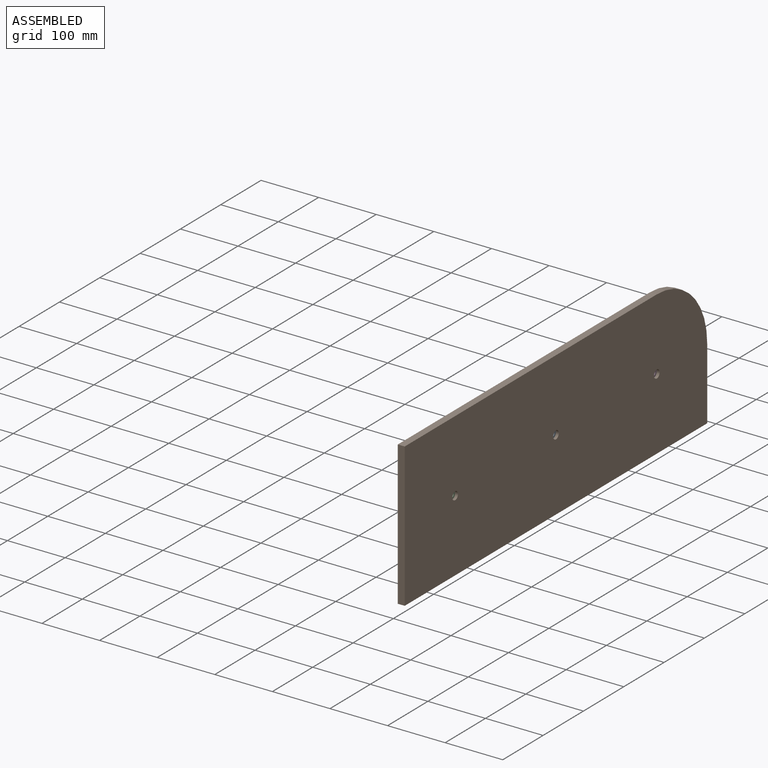
[diagram: assembled view]
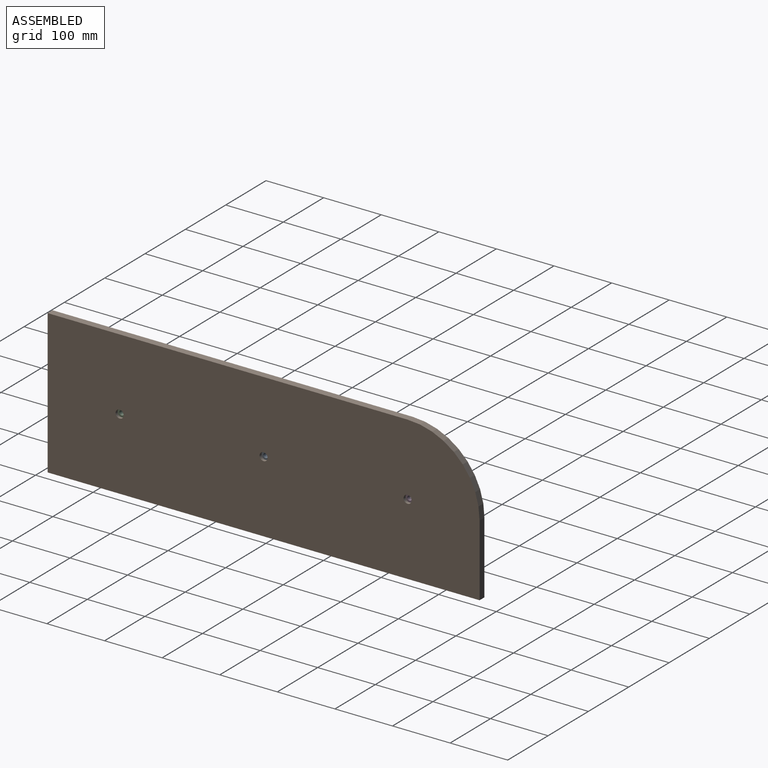
[diagram: assembled view, second angle]
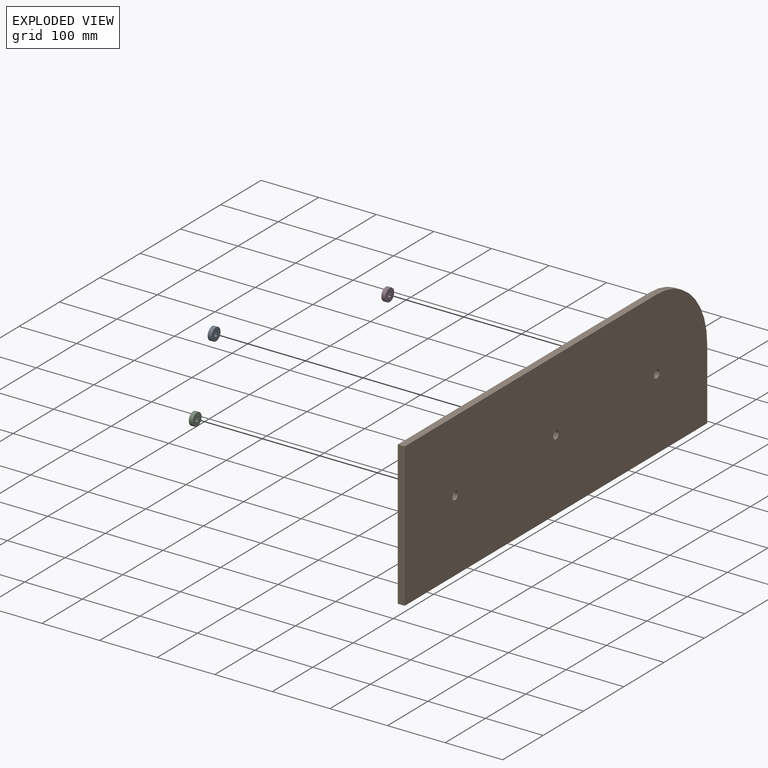
[diagram: exploded view]
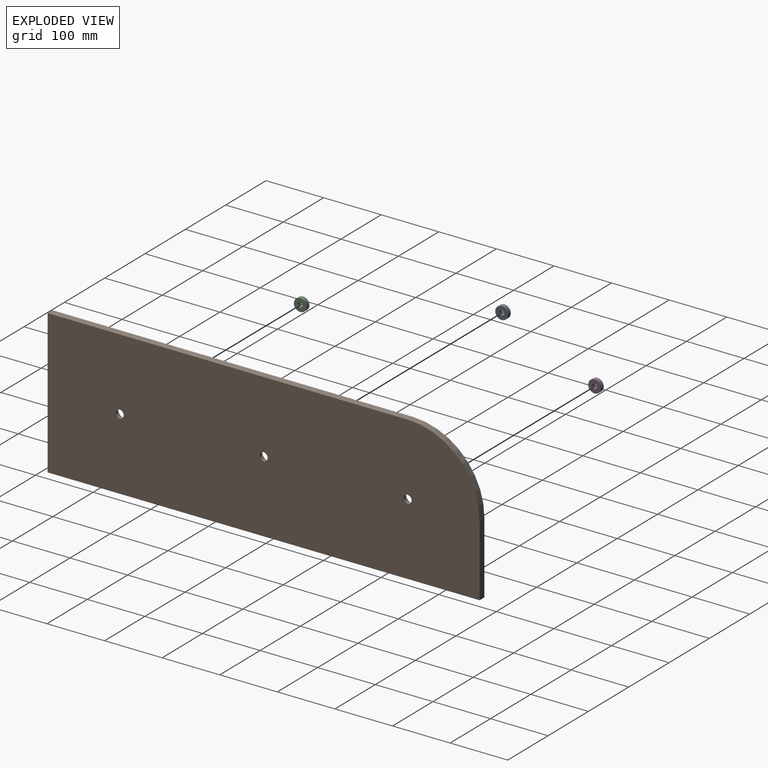
[diagram: exploded view, second angle]
ASSEMBLY  parts=4 mates=3
PART A: 4 faces, bbox 7x22x22 mm
  f0: cylinder r=4mm len=8mm, axis (-1,0,0), area 175.9mm2, adj f2,f3
  f1: cylinder r=11mm len=22mm, axis (-1,0,0), area 483.8mm2, adj f2,f3
  f2: plane 22x22mm, normal (1,0,0), area 329.9mm2, adj f0,f1
  f3: plane 22x22mm, normal (-1,0,0), area 329.9mm2, adj f0,f1
PART B: 16 faces, bbox 12x750x250 mm
  f0: cylinder r=11mm len=22mm, axis (1,0,0), area 483.8mm2, adj f8,f15
  f1: cylinder r=11mm len=22mm, axis (1,0,0), area 483.8mm2, adj f8,f13
  f2: cylinder r=11mm len=22mm, axis (1,0,0), area 483.8mm2, adj f8,f11
  f3: plane 625x12mm, normal (0,0,1), area 7500mm2, adj f4,f7,f8,f9
  f4: plane 250x12mm, normal (0,-1,0), area 3000mm2, adj f3,f5,f8,f9
  f5: plane 750x12mm, normal (0,0,-1), area 9000mm2, adj f4,f6,f8,f9
  f6: plane 125x12mm, normal (0,1,0), area 1500mm2, adj f5,f7,f8,f9
  f7: cylinder r=125mm len=125mm, axis (1,0,0), area 2356.2mm2, adj f3,f6,f8,f9
  f8: plane 750x250mm, normal (-1,0,0), area 183006.4mm2, adj f0,f1,f2,f3,f4,f5,f6,f7
  f9: plane 750x250mm, normal (1,0,0), area 183685mm2, adj f3,f4,f5,f6,f7,f10,f12,f14
  f10: cylinder r=7mm len=14mm, axis (1,0,0), area 219.9mm2, adj f9,f11
  f11: plane 22x22mm, normal (-1,0,0), area 226.2mm2, adj f2,f10
  f12: cylinder r=7mm len=14mm, axis (1,0,0), area 219.9mm2, adj f9,f13
  f13: plane 22x22mm, normal (-1,0,0), area 226.2mm2, adj f1,f12
  f14: cylinder r=7mm len=14mm, axis (1,0,0), area 219.9mm2, adj f9,f15
  f15: plane 22x22mm, normal (-1,0,0), area 226.2mm2, adj f0,f14
PART C: same geometry as A
PART D: same geometry as A
PLACE A t=(-8.67,-1.58,-0.06)mm
PLACE B t=(3.33,-1.58,-0.06)mm
PLACE C t=(-8.67,-251.58,-0.06)mm
PLACE D t=(-8.67,248.42,-0.06)mm
MATE fastened C.f0 <-> B.f0  axis (-1,0,0) through (-8.67,-251.58,-0.06)mm
MATE fastened D.f0 <-> B.f7  axis (-1,0,0) through (-8.67,248.42,-0.06)mm
MATE fastened A.f0 <-> B.f2  axis (-1,0,0) through (-8.67,-1.58,-0.06)mm
